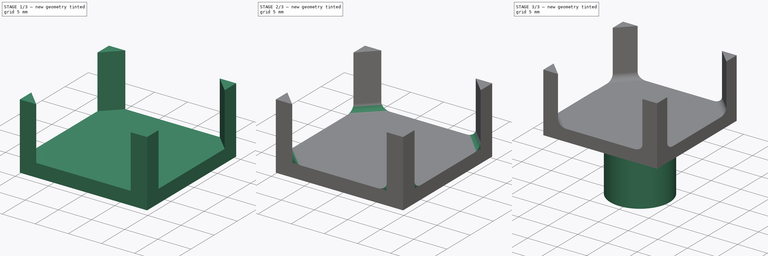
[diagram: build sequence overview — one tinted view per stage of 3, left to right]
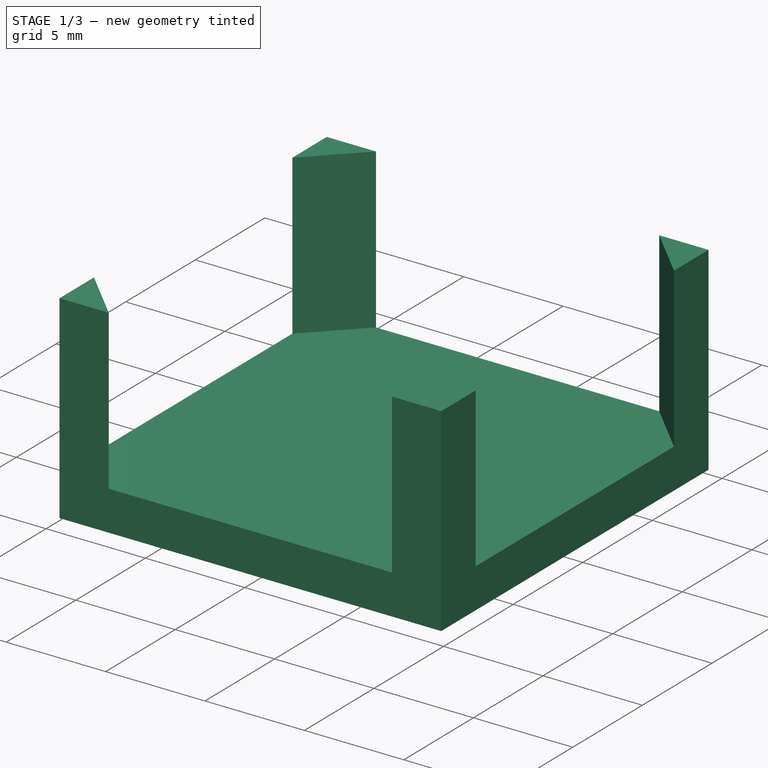
[diagram: stage 1 of 3 — iso view after this stage's code; geometry added in this stage tinted green]
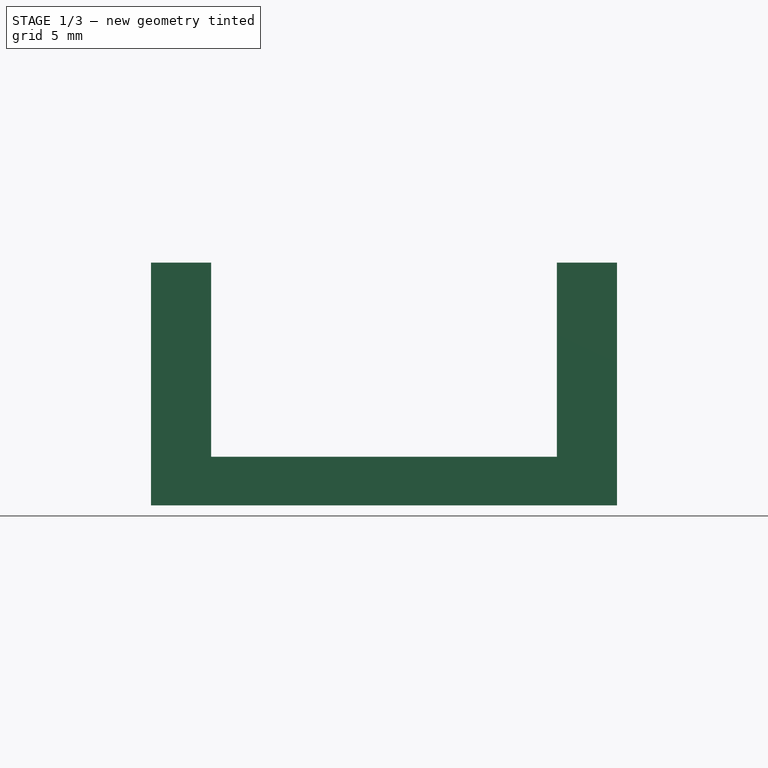
[diagram: stage 1 of 3 — front view after this stage's code; geometry added in this stage tinted green]
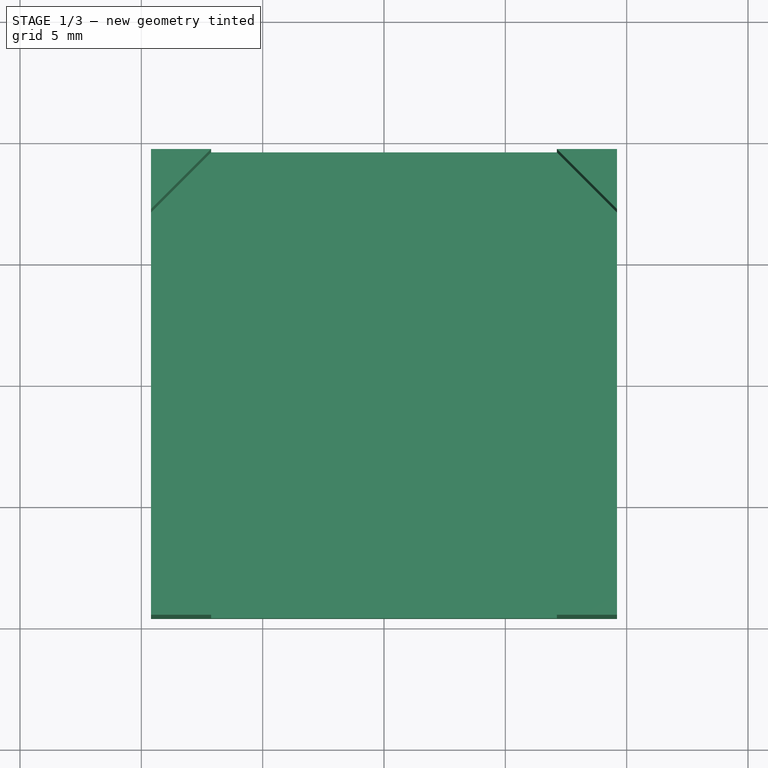
[diagram: stage 1 of 3 — top view after this stage's code; geometry added in this stage tinted green]
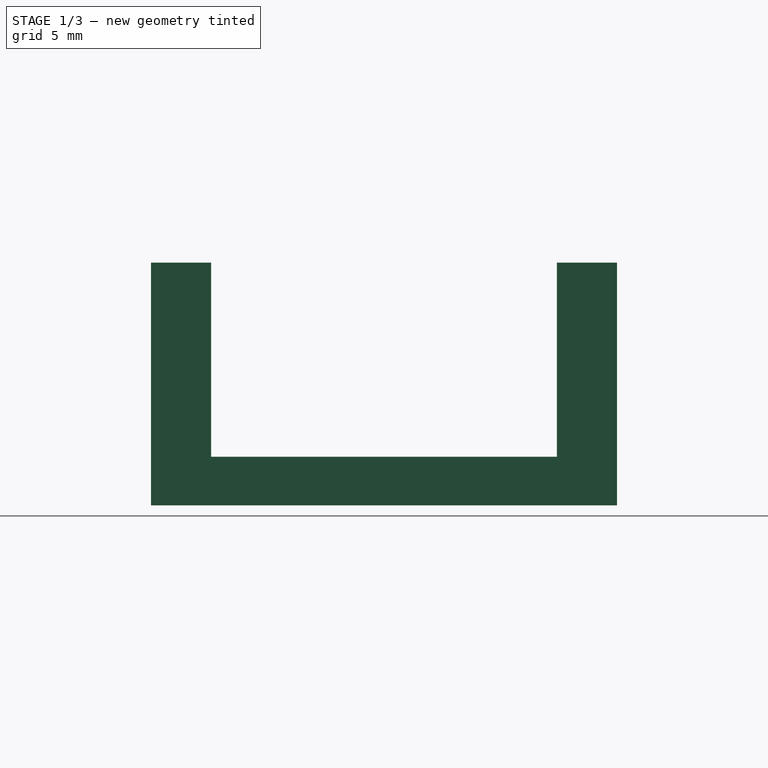
[diagram: stage 1 of 3 — right view after this stage's code; geometry added in this stage tinted green]
FCSTD DOCUMENT  (FreeCAD 0.15R4671 (Git))
Label: Center Drive Test 1
License: All rights reserved
LicenseURL: http://en.wikipedia.org/wiki/All_rights_reserved
objects: Sketcher::SketchObject×13, PartDesign::Pad×3, PartDesign::Fillet×1, PartDesign::Pocket×1
note: 22 computed .brp shape members not serialized (recipe doc carries the construction recipe); baked Part::Feature solids carry a one-line shape summary decoded from their .brp

FEATURE [Sketcher::SketchObject] Sketch
  sketch-geometry (5):
    g0: LineSegment StartX=9.6 StartY=-9.6 StartZ=0 EndX=9.6 EndY=9.6 EndZ=0
    g1: LineSegment StartX=9.6 StartY=9.6 StartZ=0 EndX=-9.6 EndY=9.6 EndZ=0
    g2: LineSegment StartX=-9.6 StartY=9.6 StartZ=0 EndX=-9.6 EndY=-9.6 EndZ=0
    g3: LineSegment StartX=-9.6 StartY=-9.6 StartZ=0 EndX=9.6 EndY=-9.6 EndZ=0
    g4: Circle [constr] CenterX=0 CenterY=0 CenterZ=0 NormalX=0 NormalY=0 NormalZ=1 Radius=13.5765
  constraints (15):
    c: Coincident(g0,g1)
    c: Coincident(g1,g2)
    c: Coincident(g2,g3)
    c: Coincident(g3,g0)
    c: Equal(g0,g1)
    c: Equal(g0,g2)
    c: Equal(g0,g3)
    c: PointOnObject(g0,g4)
    c: PointOnObject(g1,g4)
    c: PointOnObject(g2,g4)
    c: PointOnObject(g3,g4)
    c: Coincident(g1,g-1)
    c: Vertical(g0)
    c: Coincident(g4,g-1)
    c: Distance(g1) = 19.2
FEATURE [PartDesign::Pad] Pad
  Length = 2
  Length2 = 100
  Sketch = -> Sketch
  Type = 0
FEATURE [Sketcher::SketchObject] Sketch001
  ExternalGeometry = -> [Pad]
  Placement = pos=(0,0,2) rot=(0,0,1;0rad)
  Support = -> Pad [Face6]
  sketch-geometry (16):
    g0: LineSegment StartX=9.6 StartY=7.26655 StartZ=0 EndX=9.6 EndY=5.6 EndZ=0
    g1: LineSegment StartX=9.6 StartY=5.6 StartZ=0 EndX=9.6 EndY=5.6 EndZ=0
    g2: LineSegment StartX=9.6 StartY=5.6 StartZ=0 EndX=9.6 EndY=9.6 EndZ=0
    g3: LineSegment StartX=9.6 StartY=9.6 StartZ=0 EndX=5.6 EndY=9.6 EndZ=0
    g4: LineSegment StartX=-9.6 StartY=-5.6 StartZ=0 EndX=-9.6 EndY=-9.6 EndZ=0
    g5: LineSegment StartX=-9.6 StartY=-9.6 StartZ=0 EndX=-5.6 EndY=-9.6 EndZ=0
    g6: LineSegment StartX=-5.6 StartY=-9.6 StartZ=0 EndX=-5.6 EndY=-9.6 EndZ=0
    g7: LineSegment StartX=-5.6 StartY=-9.6 StartZ=0 EndX=-7.26655 EndY=-9.6 EndZ=0
    g8: LineSegment StartX=-9.6 StartY=-7.26655 StartZ=0 EndX=-9.6 EndY=-5.6 EndZ=0
    g9: LineSegment StartX=-9.6 StartY=-5.6 StartZ=0 EndX=-9.6 EndY=-5.6 EndZ=0
    g10: LineSegment StartX=5.6 StartY=-9.6 StartZ=0 EndX=5.6 EndY=-9.6 EndZ=0
    g11: LineSegment StartX=5.6 StartY=-9.6 StartZ=0 EndX=9.6 EndY=-9.6 EndZ=0
    g12: LineSegment StartX=9.6 StartY=-9.6 StartZ=0 EndX=9.6 EndY=-5.6 EndZ=0
    g13: LineSegment StartX=9.6 StartY=-5.6 StartZ=0 EndX=9.6 EndY=-5.6 EndZ=0
    g14: LineSegment StartX=9.6 StartY=-5.6 StartZ=0 EndX=9.6 EndY=-7.26655 EndZ=0
    g15: LineSegment StartX=7.26655 StartY=-9.6 StartZ=0 EndX=5.6 EndY=-9.6 EndZ=0
  constraints (40):
    c: Vertical(g0)
    c: Coincident(g0,g1)
    c: Coincident(g1,g2)
    c: Vertical(g2)
    c: Coincident(g2,g3)
    c: Horizontal(g3)
    c: Vertical(g4)
    c: Coincident(g4,g5)
    c: Horizontal(g5)
    c: Coincident(g5,g6)
    c: Coincident(g6,g7)
    c: Horizontal(g7)
    c: Vertical(g8)
    c: Coincident(g8,g9)
    c: Coincident(g9,g4)
    c: Horizontal(g9)
    c: Coincident(g10,g11)
    c: Horizontal(g11)
    c: Coincident(g11,g12)
    c: Vertical(g12)
    c: Coincident(g12,g13)
    c: Horizontal(g13)
    c: Coincident(g13,g14)
    c: Vertical(g14)
    c: Coincident(g15,g10)
    c: Horizontal(g15)
    c: Horizontal(g1)
    c: Vertical(g6)
    c: Vertical(g10)
    c: Equal(g0,g14)
    c: Equal(g14,g15)
    c: Equal(g15,g7)
    c: Equal(g7,g8)
    c: Equal(g3,g2)
    c: Equal(g2,g12)
    c: Equal(g12,g11)
    c: Symmetric(g4,g11,g-2)
    c: Equal(g1,g13)
    c: Equal(g13,g10)
    c: Equal(g10,g6)
FEATURE [Sketcher::SketchObject] Sketch002
  Placement = pos=(0,0,0) rot=(1,0,0;3.14159rad)
  sketch-geometry (12):
    g0: LineSegment StartX=-6.2 StartY=10.2 StartZ=0 EndX=0 EndY=4 EndZ=0
    g1: LineSegment StartX=0 StartY=4 StartZ=0 EndX=6.2 EndY=10.2 EndZ=0
    g2: LineSegment StartX=6.2 StartY=10.2 StartZ=0 EndX=-6.2 EndY=10.2 EndZ=0
    g3: LineSegment StartX=-10.2 StartY=6.2 StartZ=0 EndX=-4 EndY=0 EndZ=0
    g4: LineSegment StartX=-4 StartY=0 StartZ=0 EndX=-10.2 EndY=-6.2 EndZ=0
    g5: LineSegment StartX=-10.2 StartY=-6.2 StartZ=0 EndX=-10.2 EndY=6.2 EndZ=0
    g6: LineSegment StartX=-6.2 StartY=-10.2 StartZ=0 EndX=0 EndY=-4 EndZ=0
    g7: LineSegment StartX=0 StartY=-4 StartZ=0 EndX=6.2 EndY=-10.2 EndZ=0
    g8: LineSegment StartX=6.2 StartY=-10.2 StartZ=0 EndX=-6.2 EndY=-10.2 EndZ=0
    g9: LineSegment StartX=10.2 StartY=6.2 StartZ=0 EndX=4 EndY=0 EndZ=0
    g10: LineSegment StartX=4 StartY=0 StartZ=0 EndX=10.2 EndY=-6.2 EndZ=0
    g11: LineSegment StartX=10.2 StartY=-6.2 StartZ=0 EndX=10.2 EndY=6.2 EndZ=0
  constraints (20):
    c: PointOnObject(g0,g-2)
    c: Coincident(g0,g1)
    c: Coincident(g1,g2)
    c: Coincident(g2,g0)
    c: PointOnObject(g3,g-1)
    c: Coincident(g3,g4)
    c: Coincident(g4,g5)
    c: Coincident(g5,g3)
    c: PointOnObject(g6,g-2)
    c: Coincident(g6,g7)
    c: Coincident(g7,g8)
    c: Coincident(g8,g6)
    c: PointOnObject(g9,g-1)
    c: Coincident(g9,g10)
    c: Coincident(g10,g11)
    c: Coincident(g11,g9)
    c: Symmetric(g9,g3,g-2)
    c: Symmetric(g0,g6,g-1)
    c: DistanceY(g-1,g6) = -4
    c: DistanceX(g-1,g3) = -4
FEATURE [Sketcher::SketchObject] Sketch003
  Placement = pos=(2,-2,0) rot=(0.862856,0.357407,0.357407;1.71777rad)
  sketch-geometry (6):
    g0: LineSegment StartX=-2.82843 StartY=2 StartZ=0 EndX=-2.82843 EndY=5.5 EndZ=0
    g1: LineSegment StartX=-2.82843 StartY=5.5 StartZ=0 EndX=-1.17843 EndY=5.5 EndZ=0
    g2: LineSegment StartX=-1.17843 StartY=5.5 StartZ=0 EndX=-2.82843 EndY=2 EndZ=0
    g3: LineSegment StartX=2.82843 StartY=2 StartZ=0 EndX=1.17843 EndY=5.5 EndZ=0
    g4: LineSegment StartX=1.17843 StartY=5.5 StartZ=0 EndX=2.82843 EndY=5.5 EndZ=0
    g5: LineSegment StartX=2.82843 StartY=5.5 StartZ=0 EndX=2.82843 EndY=2 EndZ=0
  constraints (10):
    c: Vertical(g0)
    c: Coincident(g0,g1)
    c: Horizontal(g1)
    c: Coincident(g1,g2)
    c: Coincident(g2,g0)
    c: Coincident(g3,g4)
    c: Horizontal(g4)
    c: Coincident(g4,g5)
    c: Coincident(g5,g3)
    c: Vertical(g5)
FEATURE [Sketcher::SketchObject] Sketch004
  Placement = pos=(-2,2,0) rot=(-0.281085,0.678598,0.678598;3.68962rad)
  sketch-geometry (6):
    g0: LineSegment StartX=2.82843 StartY=2 StartZ=0 EndX=2.82843 EndY=5.5 EndZ=0
    g1: LineSegment StartX=2.82843 StartY=5.5 StartZ=0 EndX=1.17843 EndY=5.5 EndZ=0
    g2: LineSegment StartX=1.17843 StartY=5.5 StartZ=0 EndX=2.82843 EndY=2 EndZ=0
    g3: LineSegment StartX=-2.82843 StartY=2 StartZ=0 EndX=-1.17843 EndY=5.5 EndZ=0
    g4: LineSegment StartX=-1.17843 StartY=5.5 StartZ=0 EndX=-2.82843 EndY=5.5 EndZ=0
    g5: LineSegment StartX=-2.82843 StartY=5.5 StartZ=0 EndX=-2.82843 EndY=2 EndZ=0
  constraints (10):
    c: Vertical(g0)
    c: Coincident(g0,g1)
    c: Horizontal(g1)
    c: Coincident(g1,g2)
    c: Coincident(g2,g0)
    c: Coincident(g3,g4)
    c: Horizontal(g4)
    c: Coincident(g4,g5)
    c: Coincident(g5,g3)
    c: Vertical(g5)
FEATURE [Sketcher::SketchObject] Sketch005
  Placement = pos=(2,2,0) rot=(0.281085,0.678598,0.678598;2.59356rad)
  sketch-geometry (6):
    g0: LineSegment StartX=-2.82843 StartY=2 StartZ=0 EndX=-1.17843 EndY=5.5 EndZ=0
    g1: LineSegment StartX=-1.17843 StartY=5.5 StartZ=0 EndX=-2.82843 EndY=5.5 EndZ=0
    g2: LineSegment StartX=-2.82843 StartY=5.5 StartZ=0 EndX=-2.82843 EndY=2 EndZ=0
    g3: LineSegment StartX=2.82843 StartY=2 StartZ=0 EndX=1.17843 EndY=5.5 EndZ=0
    g4: LineSegment StartX=1.17843 StartY=5.5 StartZ=0 EndX=2.82843 EndY=5.5 EndZ=0
    g5: LineSegment StartX=2.82843 StartY=5.5 StartZ=0 EndX=2.82843 EndY=2 EndZ=0
  constraints (10):
    c: Coincident(g0,g1)
    c: Horizontal(g1)
    c: Coincident(g1,g2)
    c: Coincident(g2,g0)
    c: Vertical(g2)
    c: Coincident(g3,g4)
    c: Horizontal(g4)
    c: Coincident(g4,g5)
    c: Coincident(g5,g3)
    c: Vertical(g5)
FEATURE [Sketcher::SketchObject] Sketch006
  Placement = pos=(-2,-2,0) rot=(0.862856,-0.357407,-0.357407;1.71777rad)
  sketch-geometry (6):
    g0: LineSegment StartX=2.82843 StartY=2 StartZ=0 EndX=1.17843 EndY=5.5 EndZ=0
    g1: LineSegment StartX=1.17843 StartY=5.5 StartZ=0 EndX=2.82843 EndY=5.5 EndZ=0
    g2: LineSegment StartX=2.82843 StartY=5.5 StartZ=0 EndX=2.82843 EndY=2 EndZ=0
    g3: LineSegment StartX=-2.82843 StartY=2 StartZ=0 EndX=-1.17843 EndY=5.5 EndZ=0
    g4: LineSegment StartX=-1.17843 StartY=5.5 StartZ=0 EndX=-2.82843 EndY=5.5 EndZ=0
    g5: LineSegment StartX=-2.82843 StartY=5.5 StartZ=0 EndX=-2.82843 EndY=2 EndZ=0
  constraints (10):
    c: Coincident(g0,g1)
    c: Horizontal(g1)
    c: Coincident(g1,g2)
    c: Coincident(g2,g0)
    c: Vertical(g2)
    c: Coincident(g3,g4)
    c: Horizontal(g4)
    c: Coincident(g4,g5)
    c: Coincident(g5,g3)
    c: Vertical(g5)
FEATURE [Sketcher::SketchObject] Sketch007
  Placement = pos=(0,0,0) rot=(1,0,0;3.14159rad)
  sketch-geometry (1):
    g0: Circle CenterX=0 CenterY=0 CenterZ=0 NormalX=0 NormalY=0 NormalZ=1 Radius=4.5
  constraints (2):
    c: Coincident(g0,g-1)
    c: Radius(g0) = 4.5
FEATURE [Sketcher::SketchObject] Sketch009
  Placement = pos=(0,0,0) rot=(1,0,0;3.14159rad)
  sketch-geometry (13):
    g0: LineSegment StartX=10.2 StartY=6.2 StartZ=0 EndX=6.2 EndY=10.2 EndZ=0
    g1: LineSegment StartX=6.2 StartY=10.2 StartZ=0 EndX=0 EndY=4 EndZ=0
    g2: LineSegment StartX=0 StartY=4 StartZ=0 EndX=-6.2 EndY=10.2 EndZ=0
    g3: LineSegment StartX=-6.2 StartY=10.2 StartZ=0 EndX=-10.2 EndY=6.2 EndZ=0
    g4: LineSegment StartX=-10.2 StartY=6.2 StartZ=0 EndX=-4 EndY=0 EndZ=0
    g5: LineSegment StartX=-4 StartY=0 StartZ=0 EndX=-10.2 EndY=-6.2 EndZ=0
    g6: LineSegment StartX=-10.2 StartY=-6.2 StartZ=0 EndX=-6.2 EndY=-10.2 EndZ=0
    g7: LineSegment StartX=-6.2 StartY=-10.2 StartZ=0 EndX=0 EndY=-4 EndZ=0
    g8: LineSegment StartX=0 StartY=-4 StartZ=0 EndX=6.2 EndY=-10.2 EndZ=0
    g9: LineSegment StartX=6.2 StartY=-10.2 StartZ=0 EndX=10.2 EndY=-6.2 EndZ=0
    g10: LineSegment StartX=10.2 StartY=-6.2 StartZ=0 EndX=4 EndY=0 EndZ=0
    g11: LineSegment StartX=4 StartY=0 StartZ=0 EndX=10.2 EndY=6.2 EndZ=0
    g12: Circle CenterX=0 CenterY=0 CenterZ=0 NormalX=0 NormalY=0 NormalZ=1 Radius=3.0901
  constraints (13):
    c: Coincident(g0,g1)
    c: Coincident(g1,g2)
    c: Coincident(g2,g3)
    c: Coincident(g3,g4)
    c: Coincident(g4,g5)
    c: Coincident(g5,g6)
    c: Coincident(g6,g7)
    c: Coincident(g7,g8)
    c: Coincident(g8,g9)
    c: Coincident(g9,g10)
    c: Coincident(g10,g11)
    c: Coincident(g11,g0)
    c: Coincident(g12,g-1)
FEATURE [Sketcher::SketchObject] Sketch010
  Placement = pos=(0,0,0) rot=(1,0,0;3.14159rad)
  sketch-geometry (8):
    g0: LineSegment StartX=-9.9 StartY=9.9 StartZ=0 EndX=9.9 EndY=9.9 EndZ=0
    g1: LineSegment StartX=9.9 StartY=9.9 StartZ=0 EndX=9.9 EndY=-9.9 EndZ=0
    g2: LineSegment StartX=9.9 StartY=-9.9 StartZ=0 EndX=-9.9 EndY=-9.9 EndZ=0
    g3: LineSegment StartX=-9.9 StartY=-9.9 StartZ=0 EndX=-9.9 EndY=9.9 EndZ=0
    g4: LineSegment StartX=-10.9 StartY=10.9 StartZ=0 EndX=10.9 EndY=10.9 EndZ=0
    g5: LineSegment StartX=10.9 StartY=10.9 StartZ=0 EndX=10.9 EndY=-10.9 EndZ=0
    g6: LineSegment StartX=10.9 StartY=-10.9 StartZ=0 EndX=-10.9 EndY=-10.9 EndZ=0
    g7: LineSegment StartX=-10.9 StartY=-10.9 StartZ=0 EndX=-10.9 EndY=10.9 EndZ=0
  constraints (23):
    c: Coincident(g0,g1)
    c: Coincident(g1,g2)
    c: Coincident(g2,g3)
    c: Coincident(g3,g0)
    c: Horizontal(g0)
    c: Horizontal(g2)
    c: Vertical(g1)
    c: Vertical(g3)
    c: Coincident(g4,g5)
    c: Coincident(g5,g6)
    c: Coincident(g6,g7)
    c: Coincident(g7,g4)
    c: Horizontal(g4)
    c: Horizontal(g6)
    c: Vertical(g5)
    c: Vertical(g7)
    c: Equal(g0,g1)
    c: Equal(g4,g5)
    c: Symmetric(g0,g0,g-2)
    c: Symmetric(g4,g4,g-2)
    c: Symmetric(g1,g0,g-1)
    c: Symmetric(g5,g4,g-1)
    c: DistanceY(g0,g4) = 1
FEATURE [Sketcher::SketchObject] Sketch011
  ExternalGeometry = -> [Pad]
  Placement = pos=(0,0,2) rot=(0,0,1;0rad)
  Support = -> Pad [Face6]
  sketch-geometry (12):
    g0: LineSegment StartX=-9.6 StartY=7.12513 StartZ=0 EndX=-7.12513 EndY=9.6 EndZ=0
    g1: LineSegment StartX=-7.12513 StartY=9.6 StartZ=0 EndX=-9.6 EndY=9.6 EndZ=0
    g2: LineSegment StartX=-9.6 StartY=9.6 StartZ=0 EndX=-9.6 EndY=7.12513 EndZ=0
    g3: LineSegment StartX=7.12513 StartY=9.6 StartZ=0 EndX=9.6 EndY=9.6 EndZ=0
    g4: LineSegment StartX=9.6 StartY=9.6 StartZ=0 EndX=9.6 EndY=7.12513 EndZ=0
    g5: LineSegment StartX=9.6 StartY=7.12513 StartZ=0 EndX=7.12513 EndY=9.6 EndZ=0
    g6: LineSegment StartX=7.12513 StartY=-9.6 StartZ=0 EndX=9.6 EndY=-9.6 EndZ=0
    g7: LineSegment StartX=9.6 StartY=-9.6 StartZ=0 EndX=9.6 EndY=-7.12513 EndZ=0
    g8: LineSegment StartX=9.6 StartY=-7.12513 StartZ=0 EndX=7.12513 EndY=-9.6 EndZ=0
    g9: LineSegment StartX=-7.12513 StartY=-9.6 StartZ=0 EndX=-9.6 EndY=-9.6 EndZ=0
    g10: LineSegment StartX=-9.6 StartY=-9.6 StartZ=0 EndX=-9.6 EndY=-7.12513 EndZ=0
    g11: LineSegment StartX=-9.6 StartY=-7.12513 StartZ=0 EndX=-7.12513 EndY=-9.6 EndZ=0
  constraints (32):
    c: PointOnObject(g0,g-3)
    c: PointOnObject(g0,g-4)
    c: Coincident(g0,g1)
    c: Coincident(g1,g-4)
    c: Coincident(g1,g2)
    c: Coincident(g2,g0)
    c: PointOnObject(g3,g-4)
    c: Coincident(g3,g-5)
    c: Coincident(g3,g4)
    c: PointOnObject(g4,g-5)
    c: Coincident(g4,g5)
    c: Coincident(g5,g3)
    c: PointOnObject(g6,g-6)
    c: Coincident(g6,g-6)
    c: Coincident(g6,g7)
    c: PointOnObject(g7,g-5)
    c: Coincident(g8,g7)
    c: Coincident(g8,g6)
    c: PointOnObject(g9,g-6)
    c: Coincident(g9,g-6)
    c: Coincident(g9,g10)
    c: PointOnObject(g10,g-3)
    c: Coincident(g10,g11)
    c: Coincident(g11,g9)
    c: Symmetric(g4,g7,g-1)
    c: Distance(g8) = 3.5
    c: Equal(g5,g0)
    c: Equal(g0,g11)
    c: Equal(g11,g8)
    c: Parallel(g8,g0)
    c: Parallel(g5,g11)
    c: Perpendicular(g0,g5)
FEATURE [PartDesign::Pad] Pad001
  Length = 8
  Length2 = 100
  Sketch = -> Sketch011
  Type = 0
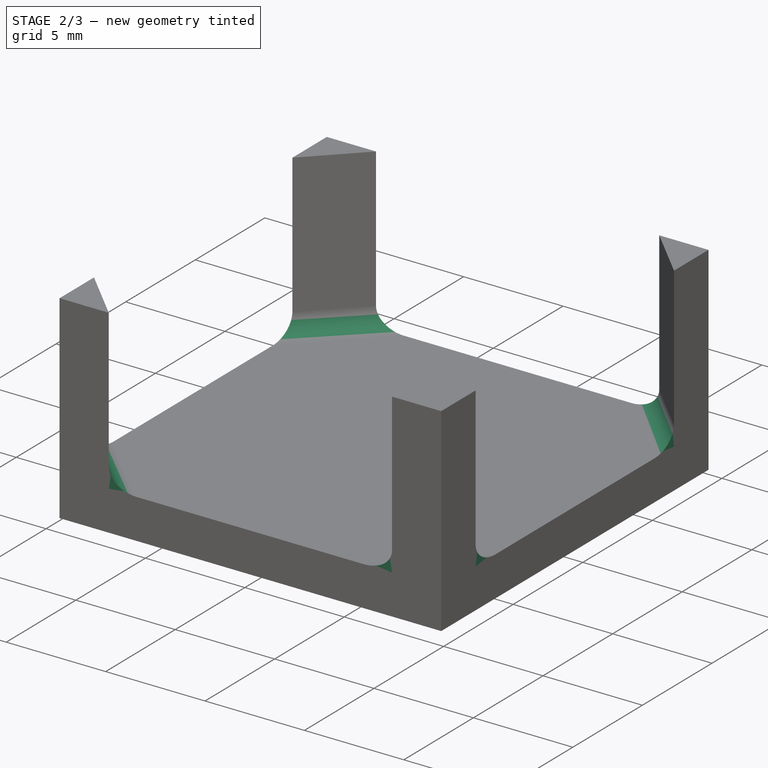
[diagram: stage 2 of 3 — iso view after this stage's code; geometry added in this stage tinted green]
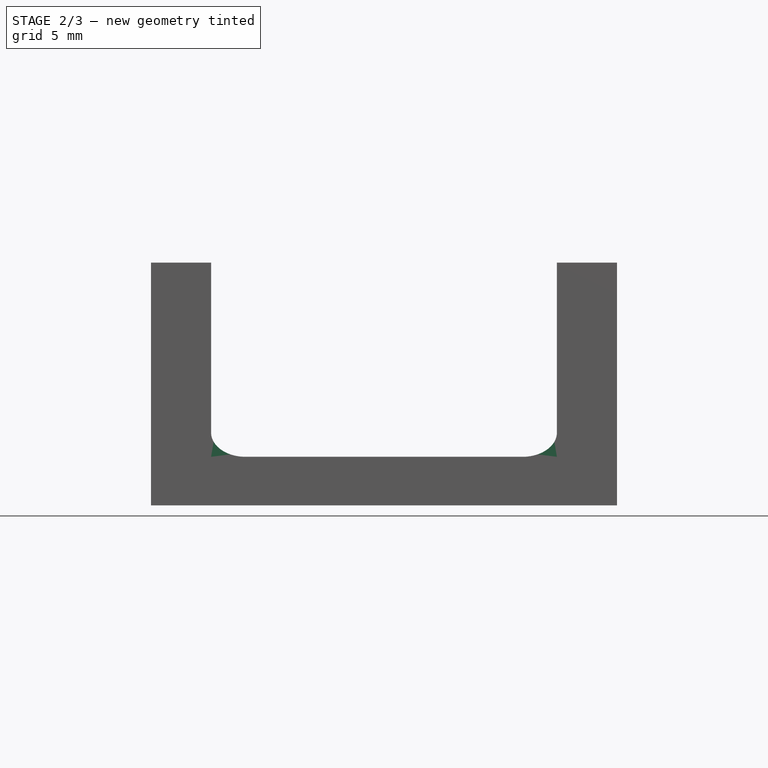
[diagram: stage 2 of 3 — front view after this stage's code; geometry added in this stage tinted green]
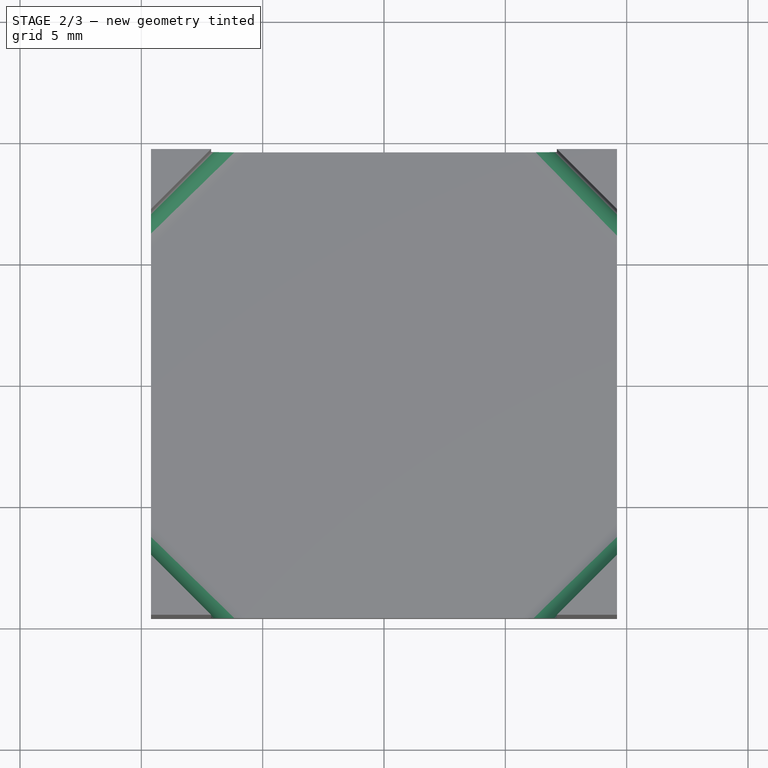
[diagram: stage 2 of 3 — top view after this stage's code; geometry added in this stage tinted green]
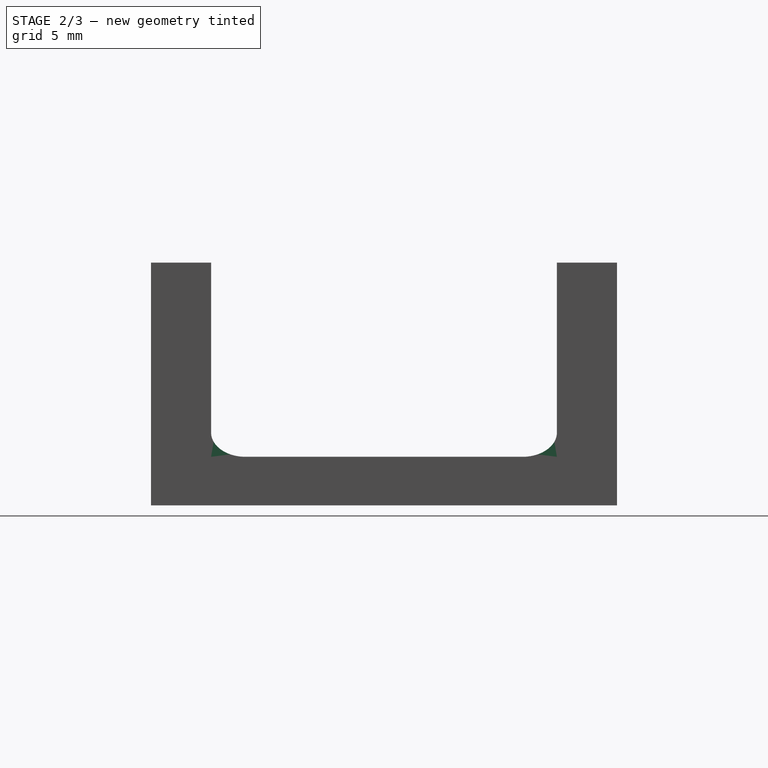
[diagram: stage 2 of 3 — right view after this stage's code; geometry added in this stage tinted green]
FEATURE [PartDesign::Fillet] Fillet
  Base = -> Pad001 [Edge25,Edge24,Edge27,Edge26]
  Radius = 1
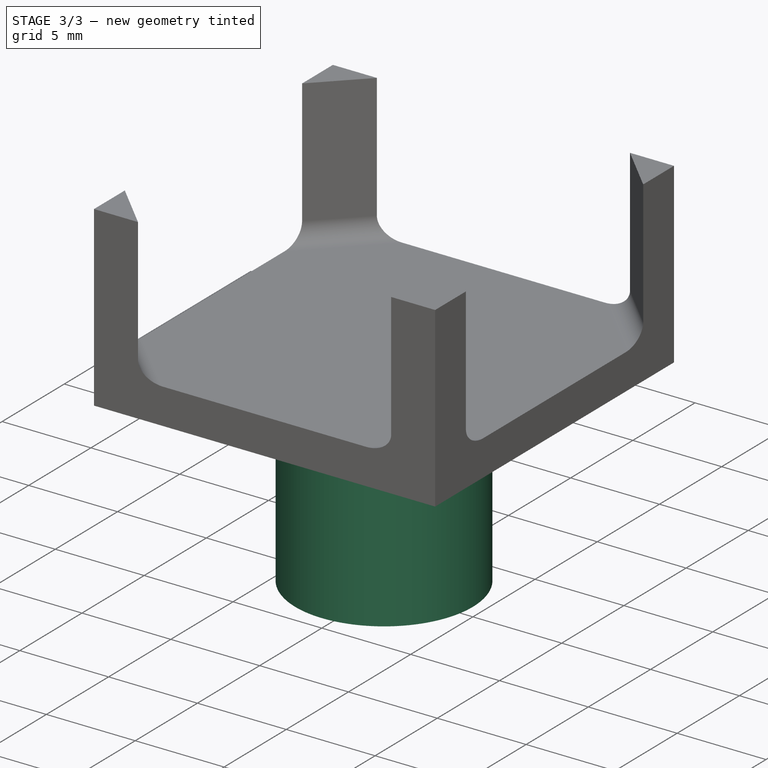
[diagram: stage 3 of 3 — iso view after this stage's code; geometry added in this stage tinted green]
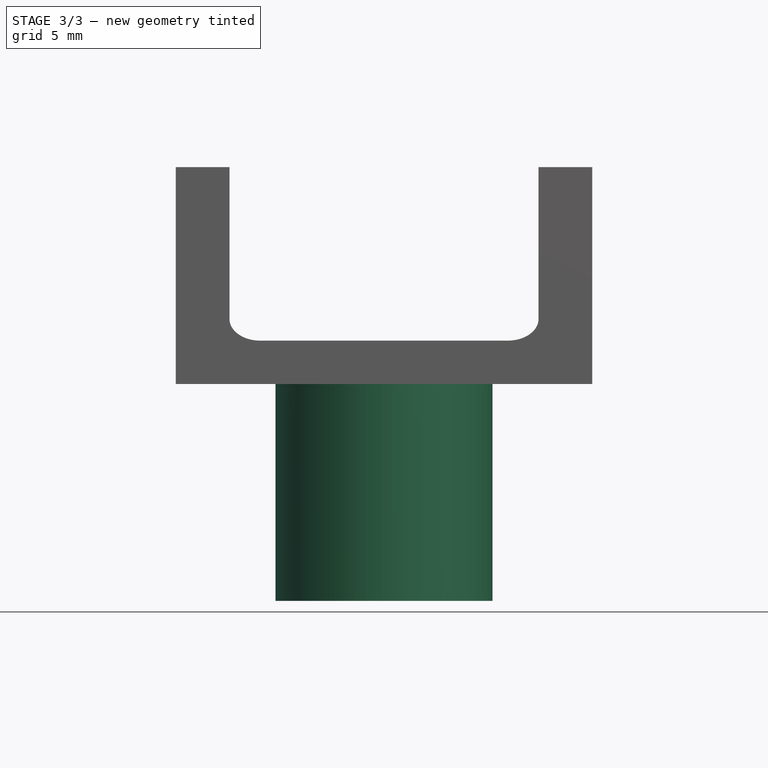
[diagram: stage 3 of 3 — front view after this stage's code; geometry added in this stage tinted green]
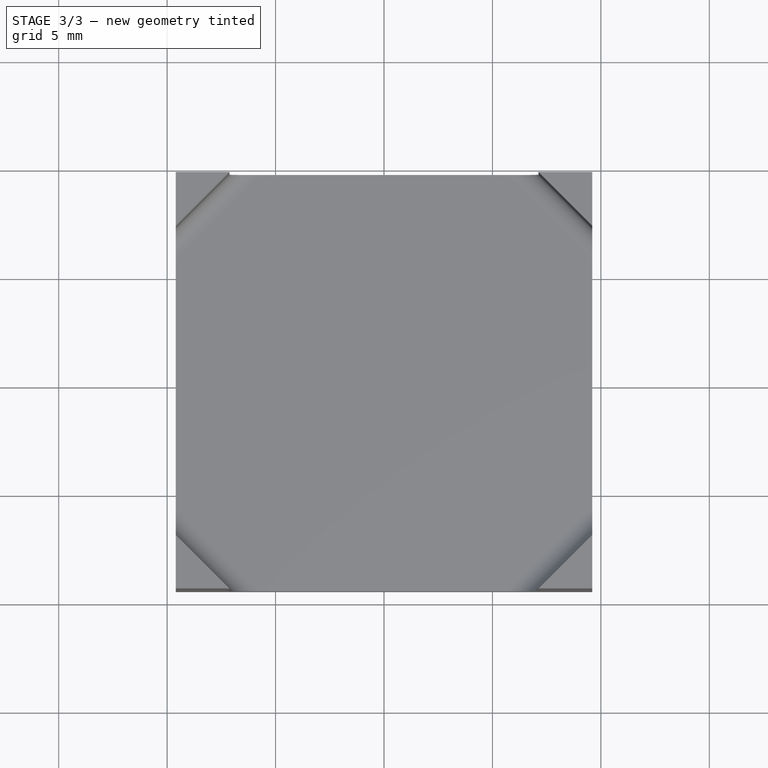
[diagram: stage 3 of 3 — top view after this stage's code; geometry added in this stage tinted green]
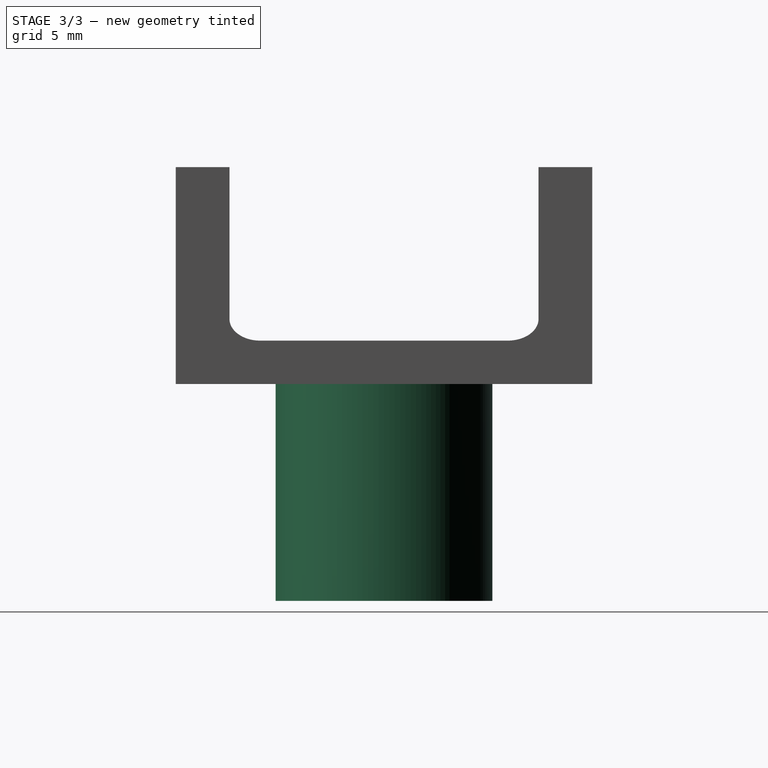
[diagram: stage 3 of 3 — right view after this stage's code; geometry added in this stage tinted green]
FEATURE [Sketcher::SketchObject] Sketch012
  Placement = pos=(0,0,0) rot=(1,0,0;3.14159rad)
  Support = -> Fillet [Face7]
  sketch-geometry (1):
    g0: Circle CenterX=0 CenterY=0 CenterZ=0 NormalX=0 NormalY=0 NormalZ=1 Radius=5
  constraints (2):
    c: Coincident(g0,g-1)
    c: Radius(g0) = 5
FEATURE [PartDesign::Pad] Pad002
  Length = 10
  Length2 = 100
  Sketch = -> Sketch012
  Type = 0
FEATURE [Sketcher::SketchObject] Sketch008
  Placement = pos=(0,0,-10) rot=(1,0,0;3.14159rad)
  Support = -> Pad002 [Face1]
  sketch-geometry (4):
    g0: Circle [constr] CenterX=0 CenterY=0 CenterZ=0 NormalX=0 NormalY=0 NormalZ=1 Radius=2.63
    g1: LineSegment StartX=-1.68419 StartY=2.02 StartZ=0 EndX=1.68419 EndY=2.02 EndZ=0
    g2: GeomPoint [constr] X=0 Y=-2.63 Z=0
    g3: ArcOfCircle CenterX=0 CenterY=0 CenterZ=0 NormalX=0 NormalY=0 NormalZ=1 Radius=2.63 StartAngle=2.26579 EndAngle=7.15899
  constraints (11):
    c: Coincident(g0,g-1)
    c: Radius(g0) = 2.63
    c: PointOnObject(g1,g0)
    c: Horizontal(g1)
    c: PointOnObject(g2,g0)
    c: PointOnObject(g2,g-2)
    c: DistanceY(g2,g1) = 4.65
    c: PointOnObject(g1,g0)
    c: Coincident(g3,g-1)
    c: Coincident(g3,g1)
    c: Coincident(g3,g1)
FEATURE [PartDesign::Pocket] Pocket
  Length = 10
  Sketch = -> Sketch008
  Type = 0
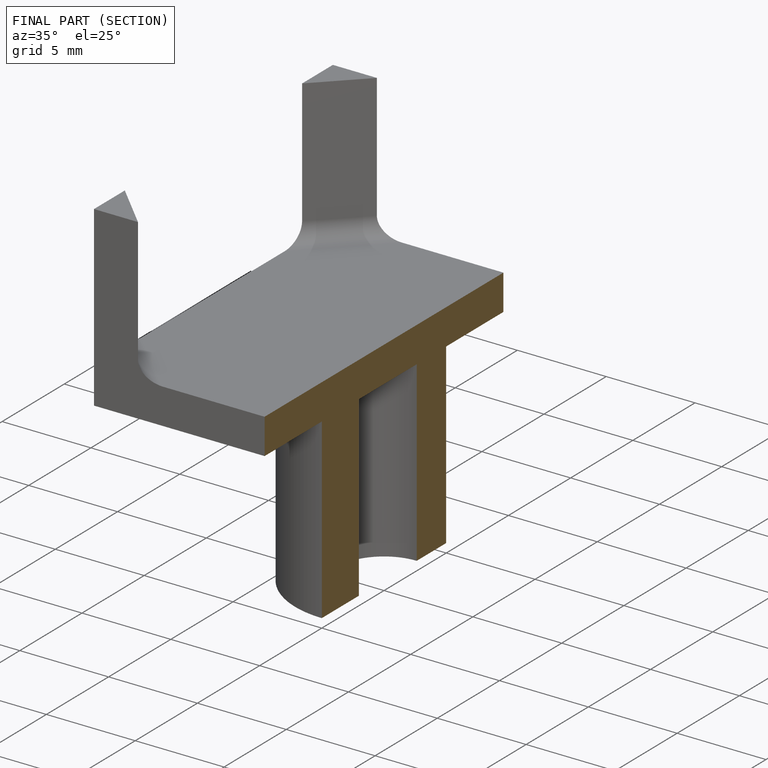
[diagram: finished part — half-section view (interior)]
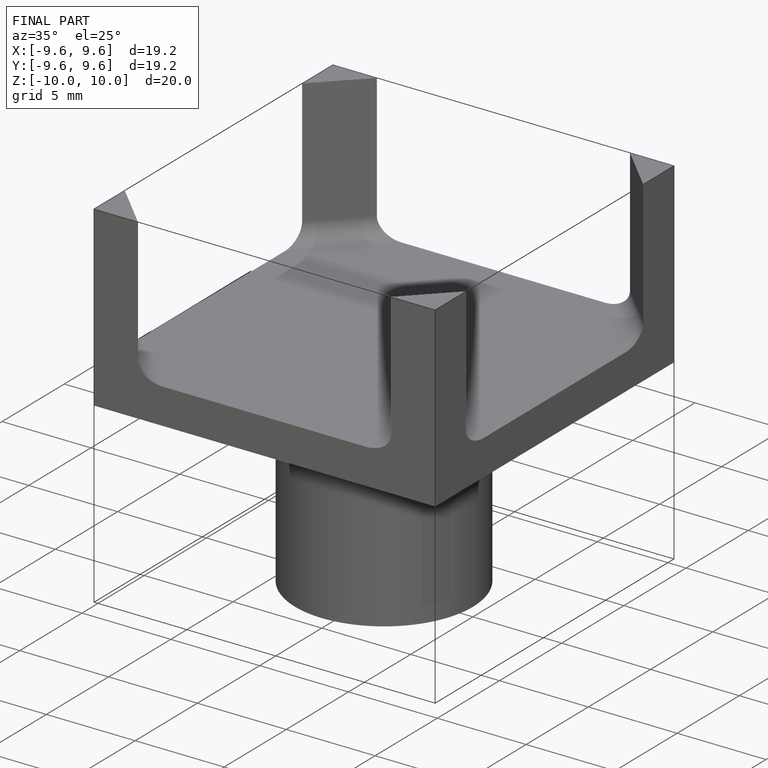
[diagram: finished part — iso view with bounding-box wireframe]
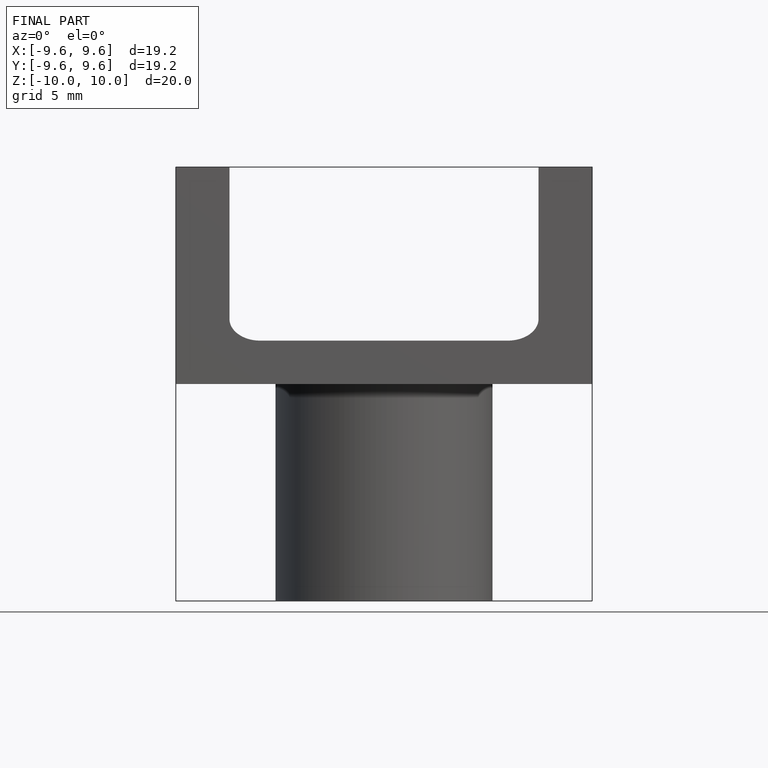
[diagram: finished part — front view with bounding-box wireframe]
